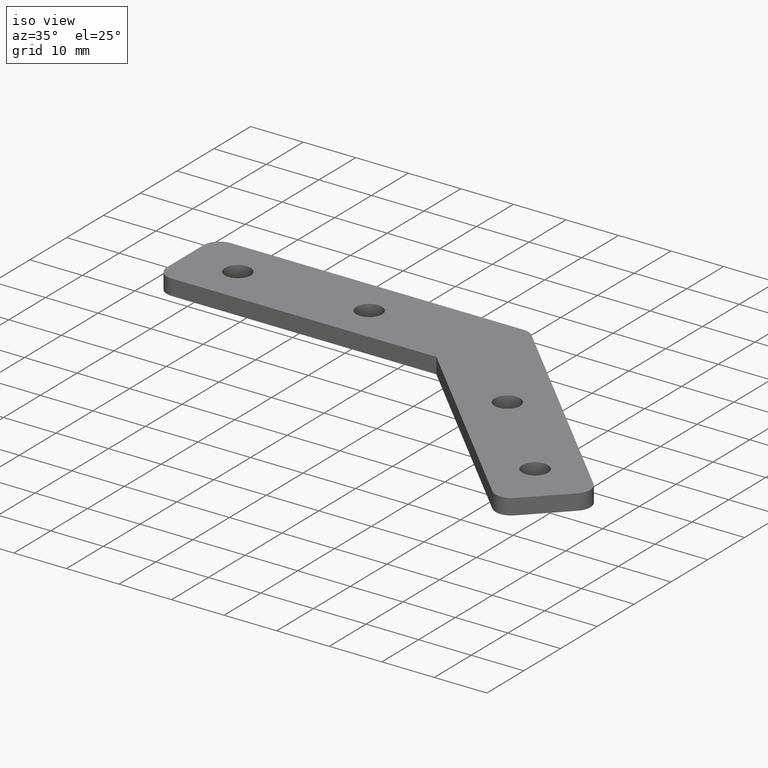
[diagram: clean part render]
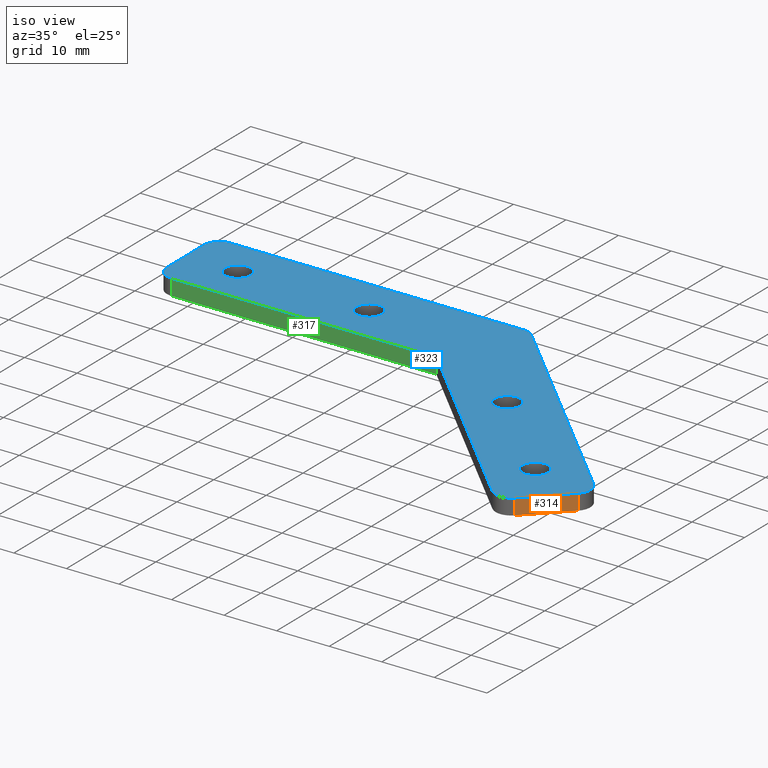
[diagram: same view with three faces highlighted in distinct colors, each labeled with its STEP entity id]
A machine part, iso view with three faces highlighted in distinct colors.
Their STEP definitions:

[orange] entity #314 — the highlighted planar face has unit normal (0.7071, -0.7071, 0).
#16=PLANE('',#345);
#28=LINE('',#497,#51);
#29=LINE('',#500,#52);
#30=LINE('',#502,#53);
#31=LINE('',#503,#54);
#51=VECTOR('',#406,3.);
#52=VECTOR('',#409,10.0000000000002);
#53=VECTOR('',#410,10.0000000000002);
#54=VECTOR('',#411,3.);
#88=FACE_OUTER_BOUND('',#109,.T.);
#109=EDGE_LOOP('',(#236,#237,#238,#239));
#159=VERTEX_POINT('',#493);
#160=VERTEX_POINT('',#495);
#161=VERTEX_POINT('',#499);
#162=VERTEX_POINT('',#501);
#192=EDGE_CURVE('',#159,#160,#28,.T.);
#193=EDGE_CURVE('',#159,#161,#29,.T.);
#194=EDGE_CURVE('',#162,#160,#30,.T.);
#195=EDGE_CURVE('',#161,#162,#31,.T.);
#236=ORIENTED_EDGE('',*,*,#193,.F.);
#237=ORIENTED_EDGE('',*,*,#192,.T.);
#238=ORIENTED_EDGE('',*,*,#194,.F.);
#239=ORIENTED_EDGE('',*,*,#195,.F.);
#314=ADVANCED_FACE('',(#88),#16,.T.);
#345=AXIS2_PLACEMENT_3D('',#498,#407,#408);
#406=DIRECTION('',(0.,0.,1.));
#407=DIRECTION('center_axis',(0.707106781186539,-0.707106781186556,0.));
#408=DIRECTION('ref_axis',(0.707106781186556,0.707106781186539,0.));
#409=DIRECTION('',(-0.707106781186556,-0.707106781186539,0.));
#410=DIRECTION('',(0.707106781186556,0.707106781186539,0.));
#411=DIRECTION('',(0.,0.,1.));
#493=CARTESIAN_POINT('',(95.1770711263131,10.1907007485081,0.));
#495=CARTESIAN_POINT('',(95.1770711263131,10.1907007485081,3.));
#497=CARTESIAN_POINT('',(95.1770711263131,10.1907007485081,0.));
#498=CARTESIAN_POINT('Origin',(88.1060033144474,3.11963293664257,0.));
#499=CARTESIAN_POINT('',(88.1060033144474,3.11963293664257,0.));
#500=CARTESIAN_POINT('',(95.1770711263131,10.1907007485081,0.));
#501=CARTESIAN_POINT('',(88.1060033144474,3.11963293664258,3.));
#502=CARTESIAN_POINT('',(95.1770711263131,10.1907007485081,3.));
#503=CARTESIAN_POINT('',(88.1060033144474,3.11963293664257,0.));

[blue] entity #323 — the highlighted planar face has unit normal (0, 0, 1).
#22=PLANE('',#360);
#26=LINE('',#490,#49);
#30=LINE('',#502,#53);
#34=LINE('',#514,#57);
#37=LINE('',#520,#60);
#41=LINE('',#532,#64);
#45=LINE('',#542,#68);
#49=VECTOR('',#398,55.7573593128806);
#53=VECTOR('',#410,10.0000000000002);
#57=VECTOR('',#422,50.3725830020307);
#60=VECTOR('',#427,50.3725830020304);
#64=VECTOR('',#439,10.);
#68=VECTOR('',#451,55.7573593128808);
#77=FACE_BOUND('',#123,.T.);
#78=FACE_BOUND('',#124,.T.);
#79=FACE_BOUND('',#125,.T.);
#80=FACE_BOUND('',#126,.T.);
#97=FACE_OUTER_BOUND('',#122,.T.);
#122=EDGE_LOOP('',(#283,#284,#285,#286,#287,#288,#289,#290,#291,#292,#293));
#123=EDGE_LOOP('',(#294));
#124=EDGE_LOOP('',(#295));
#125=EDGE_LOOP('',(#296));
#126=EDGE_LOOP('',(#297));
#128=CIRCLE('',#328,2.4585);
#130=CIRCLE('',#331,2.4585);
#132=CIRCLE('',#334,2.4585);
#134=CIRCLE('',#337,2.4585);
#136=CIRCLE('',#340,3.);
#138=CIRCLE('',#344,3.);
#140=CIRCLE('',#348,3.);
#142=CIRCLE('',#353,3.);
#144=CIRCLE('',#357,3.);
#146=VERTEX_POINT('',#460);
#148=VERTEX_POINT('',#465);
#150=VERTEX_POINT('',#470);
#152=VERTEX_POINT('',#475);
#155=VERTEX_POINT('',#481);
#156=VERTEX_POINT('',#483);
#158=VERTEX_POINT('',#489);
#160=VERTEX_POINT('',#495);
#162=VERTEX_POINT('',#501);
#164=VERTEX_POINT('',#507);
#166=VERTEX_POINT('',#513);
#168=VERTEX_POINT('',#519);
#170=VERTEX_POINT('',#525);
#172=VERTEX_POINT('',#531);
#174=VERTEX_POINT('',#537);
#176=EDGE_CURVE('',#146,#146,#128,.T.);
#178=EDGE_CURVE('',#148,#148,#130,.T.);
#180=EDGE_CURVE('',#150,#150,#132,.T.);
#182=EDGE_CURVE('',#152,#152,#134,.T.);
#185=EDGE_CURVE('',#156,#155,#136,.T.);
#188=EDGE_CURVE('',#158,#156,#26,.T.);
#191=EDGE_CURVE('',#160,#158,#138,.T.);
#194=EDGE_CURVE('',#162,#160,#30,.T.);
#197=EDGE_CURVE('',#164,#162,#140,.T.);
#200=EDGE_CURVE('',#166,#164,#34,.T.);
#203=EDGE_CURVE('',#168,#166,#37,.T.);
#206=EDGE_CURVE('',#170,#168,#142,.T.);
#209=EDGE_CURVE('',#172,#170,#41,.T.);
#212=EDGE_CURVE('',#174,#172,#144,.T.);
#215=EDGE_CURVE('',#155,#174,#45,.T.);
#283=ORIENTED_EDGE('',*,*,#215,.T.);
#284=ORIENTED_EDGE('',*,*,#212,.T.);
#285=ORIENTED_EDGE('',*,*,#209,.T.);
#286=ORIENTED_EDGE('',*,*,#206,.T.);
#287=ORIENTED_EDGE('',*,*,#203,.T.);
#288=ORIENTED_EDGE('',*,*,#200,.T.);
#289=ORIENTED_EDGE('',*,*,#197,.T.);
#290=ORIENTED_EDGE('',*,*,#194,.T.);
#291=ORIENTED_EDGE('',*,*,#191,.T.);
#292=ORIENTED_EDGE('',*,*,#188,.T.);
#293=ORIENTED_EDGE('',*,*,#185,.T.);
#294=ORIENTED_EDGE('',*,*,#176,.T.);
#295=ORIENTED_EDGE('',*,*,#178,.T.);
#296=ORIENTED_EDGE('',*,*,#180,.T.);
#297=ORIENTED_EDGE('',*,*,#182,.T.);
#323=ADVANCED_FACE('',(#97,#77,#78,#79,#80),#22,.T.);
#328=AXIS2_PLACEMENT_3D('',#461,#367,#368);
#331=AXIS2_PLACEMENT_3D('',#466,#373,#374);
#334=AXIS2_PLACEMENT_3D('',#471,#379,#380);
#337=AXIS2_PLACEMENT_3D('',#476,#385,#386);
#340=AXIS2_PLACEMENT_3D('',#484,#392,#393);
#344=AXIS2_PLACEMENT_3D('',#496,#404,#405);
#348=AXIS2_PLACEMENT_3D('',#508,#416,#417);
#353=AXIS2_PLACEMENT_3D('',#526,#433,#434);
#357=AXIS2_PLACEMENT_3D('',#538,#445,#446);
#360=AXIS2_PLACEMENT_3D('',#544,#454,#455);
#367=DIRECTION('center_axis',(0.,0.,-1.));
#368=DIRECTION('ref_axis',(1.,0.,0.));
#373=DIRECTION('center_axis',(0.,0.,-1.));
#374=DIRECTION('ref_axis',(1.,0.,0.));
#379=DIRECTION('center_axis',(0.,0.,-1.));
#380=DIRECTION('ref_axis',(1.,0.,0.));
#385=DIRECTION('center_axis',(0.,0.,-1.));
#386=DIRECTION('ref_axis',(1.,0.,0.));
#392=DIRECTION('center_axis',(0.,0.,1.));
#393=DIRECTION('ref_axis',(-0.707106781186558,-0.707106781186537,0.));
#398=DIRECTION('',(-0.707106781186549,0.707106781186546,0.));
#404=DIRECTION('center_axis',(0.,0.,1.));
#405=DIRECTION('ref_axis',(-0.707106781186537,0.707106781186558,0.));
#410=DIRECTION('',(0.707106781186556,0.707106781186539,0.));
#416=DIRECTION('center_axis',(0.,0.,1.));
#417=DIRECTION('ref_axis',(0.707106781186557,0.707106781186538,0.));
#422=DIRECTION('',(0.707106781186549,-0.707106781186546,0.));
#427=DIRECTION('',(1.,0.,0.));
#433=DIRECTION('center_axis',(0.,0.,1.));
#434=DIRECTION('ref_axis',(1.,0.,0.));
#439=DIRECTION('',(0.,-1.,0.));
#445=DIRECTION('center_axis',(0.,0.,1.));
#446=DIRECTION('ref_axis',(0.,-1.,0.));
#451=DIRECTION('',(-1.,0.,0.));
#454=DIRECTION('center_axis',(0.,0.,1.));
#455=DIRECTION('ref_axis',(1.,0.,0.));
#460=CARTESIAN_POINT('',(87.0289694085149,13.7262346544409,3.));
#461=CARTESIAN_POINT('Origin',(84.5704694085148,13.7262346544409,3.));
#465=CARTESIAN_POINT('',(7.33048459867971,46.7384279632606,3.));
#466=CARTESIAN_POINT('Origin',(4.87198459867972,46.7384279632606,3.));
#470=CARTESIAN_POINT('',(32.3304845986797,46.7384279632606,3.));
#471=CARTESIAN_POINT('Origin',(29.8719845986797,46.7384279632606,3.));
#475=CARTESIAN_POINT('',(69.3512998788514,31.4039041841048,3.));
#476=CARTESIAN_POINT('Origin',(66.8927998788514,31.4039041841048,3.));
#481=CARTESIAN_POINT('',(53.6293439115605,54.7384279632606,3.));
#483=CARTESIAN_POINT('',(55.7506642551201,53.8597483068202,3.));
#484=CARTESIAN_POINT('Origin',(53.6293439115605,51.7384279632606,3.));
#489=CARTESIAN_POINT('',(95.177071126313,14.4333414356274,3.));
#490=CARTESIAN_POINT('',(55.7506642551201,53.8597483068202,3.));
#495=CARTESIAN_POINT('',(95.1770711263131,10.1907007485081,3.));
#496=CARTESIAN_POINT('Origin',(93.0557507827534,12.3120210920679,3.));
#501=CARTESIAN_POINT('',(88.1060033144474,3.11963293664258,3.));
#502=CARTESIAN_POINT('',(95.1770711263131,10.1907007485081,3.));
#507=CARTESIAN_POINT('',(83.8633626273283,3.11963293664258,3.));
#508=CARTESIAN_POINT('Origin',(85.9846829708879,5.24095328020212,3.));
#513=CARTESIAN_POINT('',(48.2445676007101,38.7384279632606,3.));
#514=CARTESIAN_POINT('',(83.8633626273283,3.11963293664257,3.));
#519=CARTESIAN_POINT('',(-2.12801540132028,38.7384279632606,3.));
#520=CARTESIAN_POINT('',(48.2445676007101,38.7384279632606,3.));
#525=CARTESIAN_POINT('',(-5.12801540132028,41.7384279632606,3.));
#526=CARTESIAN_POINT('Origin',(-2.12801540132028,41.7384279632606,3.));
#531=CARTESIAN_POINT('',(-5.12801540132028,51.7384279632606,3.));
#532=CARTESIAN_POINT('',(-5.12801540132028,41.7384279632606,3.));
#537=CARTESIAN_POINT('',(-2.12801540132028,54.7384279632606,3.));
#538=CARTESIAN_POINT('Origin',(-2.12801540132028,51.7384279632606,3.));
#542=CARTESIAN_POINT('',(-2.12801540132028,54.7384279632606,3.));
#544=CARTESIAN_POINT('Origin',(47.1781870225846,36.163957572518,3.));

[green] entity #317 — the highlighted planar face has unit normal (0, -1, 0).
#18=PLANE('',#350);
#35=LINE('',#515,#58);
#36=LINE('',#518,#59);
#37=LINE('',#520,#60);
#38=LINE('',#521,#61);
#58=VECTOR('',#423,3.);
#59=VECTOR('',#426,50.3725830020304);
#60=VECTOR('',#427,50.3725830020304);
#61=VECTOR('',#428,3.);
#91=FACE_OUTER_BOUND('',#112,.T.);
#112=EDGE_LOOP('',(#248,#249,#250,#251));
#165=VERTEX_POINT('',#511);
#166=VERTEX_POINT('',#513);
#167=VERTEX_POINT('',#517);
#168=VERTEX_POINT('',#519);
#201=EDGE_CURVE('',#165,#166,#35,.T.);
#202=EDGE_CURVE('',#165,#167,#36,.T.);
#203=EDGE_CURVE('',#168,#166,#37,.T.);
#204=EDGE_CURVE('',#167,#168,#38,.T.);
#248=ORIENTED_EDGE('',*,*,#202,.F.);
#249=ORIENTED_EDGE('',*,*,#201,.T.);
#250=ORIENTED_EDGE('',*,*,#203,.F.);
#251=ORIENTED_EDGE('',*,*,#204,.F.);
#317=ADVANCED_FACE('',(#91),#18,.T.);
#350=AXIS2_PLACEMENT_3D('',#516,#424,#425);
#423=DIRECTION('',(0.,0.,1.));
#424=DIRECTION('center_axis',(0.,-1.,0.));
#425=DIRECTION('ref_axis',(1.,0.,0.));
#426=DIRECTION('',(-1.,0.,0.));
#427=DIRECTION('',(1.,0.,0.));
#428=DIRECTION('',(0.,0.,1.));
#511=CARTESIAN_POINT('',(48.2445676007101,38.7384279632606,0.));
#513=CARTESIAN_POINT('',(48.2445676007101,38.7384279632606,3.));
#515=CARTESIAN_POINT('',(48.2445676007101,38.7384279632606,0.));
#516=CARTESIAN_POINT('Origin',(-2.12801540132029,38.7384279632606,0.));
#517=CARTESIAN_POINT('',(-2.12801540132028,38.7384279632606,0.));
#518=CARTESIAN_POINT('',(48.2445676007101,38.7384279632606,0.));
#519=CARTESIAN_POINT('',(-2.12801540132028,38.7384279632606,3.));
#520=CARTESIAN_POINT('',(48.2445676007101,38.7384279632606,3.));
#521=CARTESIAN_POINT('',(-2.12801540132028,38.7384279632606,0.));